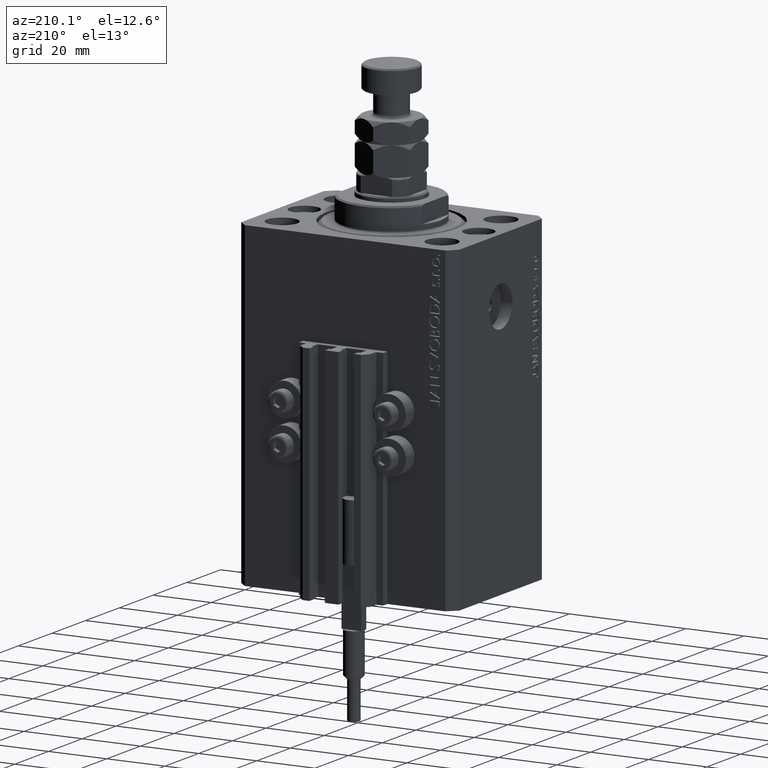
[diagram: clean part render]
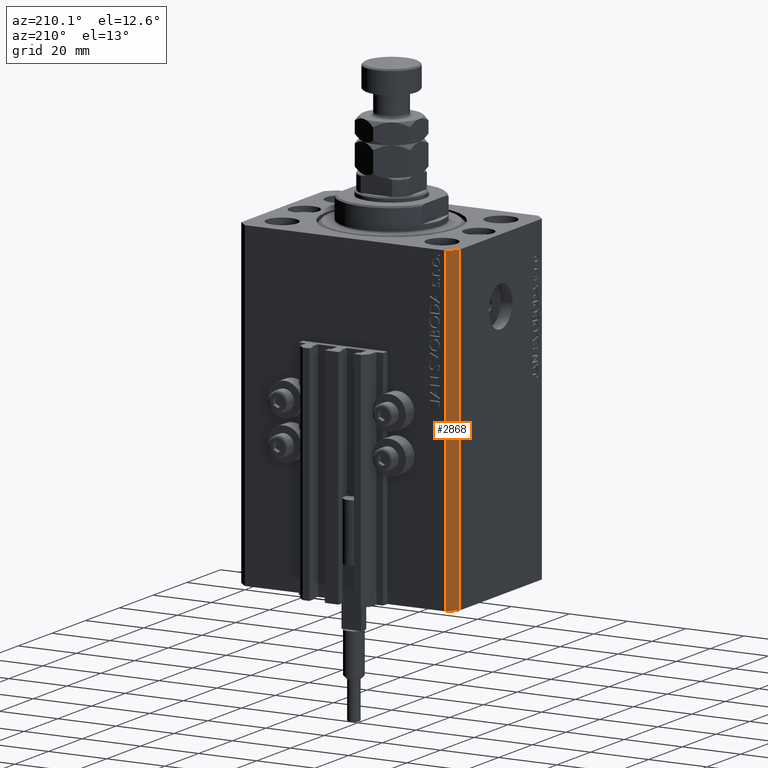
[diagram: same view with one face highlighted and labeled with its STEP entity id]
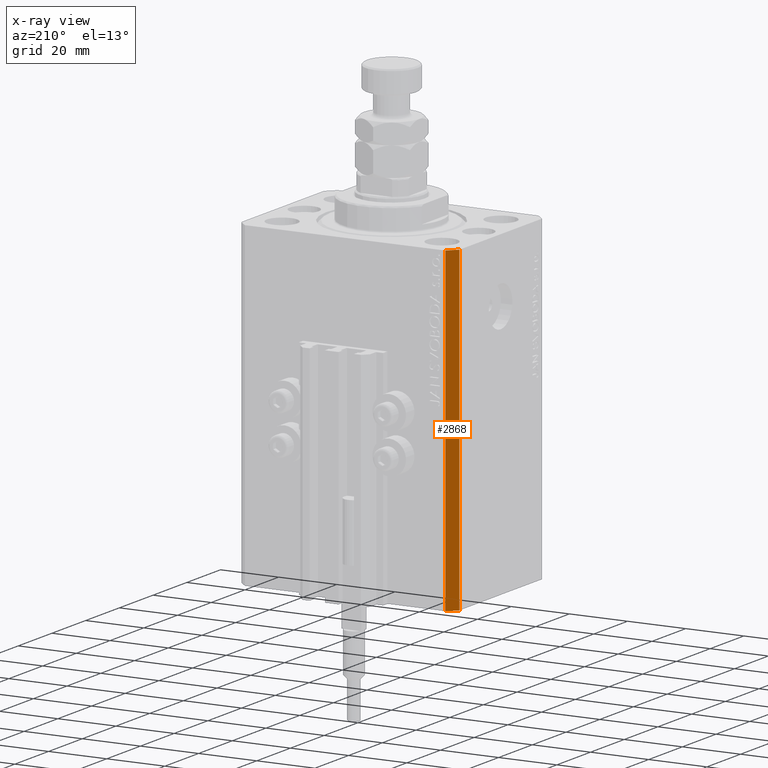
[diagram: x-ray of the same camera — body ghosted, the highlighted face saturated]
A machine part, auxiliary view. The second image highlights one B-rep face of the part: STEP entity #2868.
The next image is the same camera in x-ray: the body ghosted, the highlighted face saturated — about 0% of this face is hidden behind the body in this view.
In plain terms, the highlighted planar face has unit normal (-0.7071, 0.7071, 0).
Its self-contained STEP definition (entity closure, byte-faithful):
#2868 = ADVANCED_FACE ( 'NONE', ( #38107 ), #3491, .T. ) ;
#3068 = EDGE_LOOP ( 'NONE', ( #7460, #23748, #24276, #34320 ) ) ;
#3491 = PLANE ( 'NONE',  #22811 ) ;
#4017 = CARTESIAN_POINT ( 'NONE',  ( -34.49999999999999289, 27.50000000000000000, 0.000000000000000000 ) ) ;
#5697 = DIRECTION ( 'NONE',  ( 0.000000000000000000, 0.000000000000000000, 1.000000000000000000 ) ) ;
#6501 = CARTESIAN_POINT ( 'NONE',  ( -37.49999999999999289, 24.50000000000000000, 0.000000000000000000 ) ) ;
#7098 = LINE ( 'NONE', #33932, #34234 ) ;
#7460 = ORIENTED_EDGE ( 'NONE', *, *, #29152, .F. ) ;
#11013 = CARTESIAN_POINT ( 'NONE',  ( -34.49999999999999289, 27.50000000000000000, -110.0000000000000000 ) ) ;
#13449 = LINE ( 'NONE', #32517, #48873 ) ;
#17344 = CARTESIAN_POINT ( 'NONE',  ( -34.49999999999999289, 27.50000000000000000, -110.0000000000000000 ) ) ;
#18303 = DIRECTION ( 'NONE',  ( -0.7071067811865479058, 0.7071067811865471286, 0.000000000000000000 ) ) ;
#18796 = DIRECTION ( 'NONE',  ( -0.7071067811865471286, -0.7071067811865479058, 0.000000000000000000 ) ) ;
#19320 = DIRECTION ( 'NONE',  ( -0.7071067811865471286, -0.7071067811865479058, 0.000000000000000000 ) ) ;
#21336 = EDGE_CURVE ( 'NONE', #24095, #26718, #33658, .T. ) ;
#22811 = AXIS2_PLACEMENT_3D ( 'NONE', #11013, #18303, #18796 ) ;
#23056 = LINE ( 'NONE', #4017, #33990 ) ;
#23348 = CARTESIAN_POINT ( 'NONE',  ( -37.49999999999999289, 24.50000000000000000, -110.0000000000000000 ) ) ;
#23748 = ORIENTED_EDGE ( 'NONE', *, *, #39444, .F. ) ;
#24095 = VERTEX_POINT ( 'NONE', #17344 ) ;
#24276 = ORIENTED_EDGE ( 'NONE', *, *, #21336, .T. ) ;
#25739 = VERTEX_POINT ( 'NONE', #36710 ) ;
#26718 = VERTEX_POINT ( 'NONE', #23348 ) ;
#26884 = DIRECTION ( 'NONE',  ( 0.000000000000000000, 0.000000000000000000, 1.000000000000000000 ) ) ;
#29152 = EDGE_CURVE ( 'NONE', #25739, #48792, #23056, .T. ) ;
#32517 = CARTESIAN_POINT ( 'NONE',  ( -37.49999999999999289, 24.50000000000000000, -110.0000000000000000 ) ) ;
#33658 = LINE ( 'NONE', #40209, #43381 ) ;
#33932 = CARTESIAN_POINT ( 'NONE',  ( -34.49999999999999289, 27.50000000000000000, -110.0000000000000000 ) ) ;
#33990 = VECTOR ( 'NONE', #19320, 1000.000000000000000 ) ;
#34234 = VECTOR ( 'NONE', #26884, 1000.000000000000000 ) ;
#34320 = ORIENTED_EDGE ( 'NONE', *, *, #45660, .T. ) ;
#36710 = CARTESIAN_POINT ( 'NONE',  ( -34.49999999999999289, 27.50000000000000000, 0.000000000000000000 ) ) ;
#38107 = FACE_OUTER_BOUND ( 'NONE', #3068, .T. ) ;
#39444 = EDGE_CURVE ( 'NONE', #24095, #25739, #7098, .T. ) ;
#40209 = CARTESIAN_POINT ( 'NONE',  ( -34.49999999999999289, 27.50000000000000000, -110.0000000000000000 ) ) ;
#43381 = VECTOR ( 'NONE', #44967, 1000.000000000000000 ) ;
#44967 = DIRECTION ( 'NONE',  ( -0.7071067811865471286, -0.7071067811865479058, 0.000000000000000000 ) ) ;
#45660 = EDGE_CURVE ( 'NONE', #26718, #48792, #13449, .T. ) ;
#48792 = VERTEX_POINT ( 'NONE', #6501 ) ;
#48873 = VECTOR ( 'NONE', #5697, 1000.000000000000000 ) ;